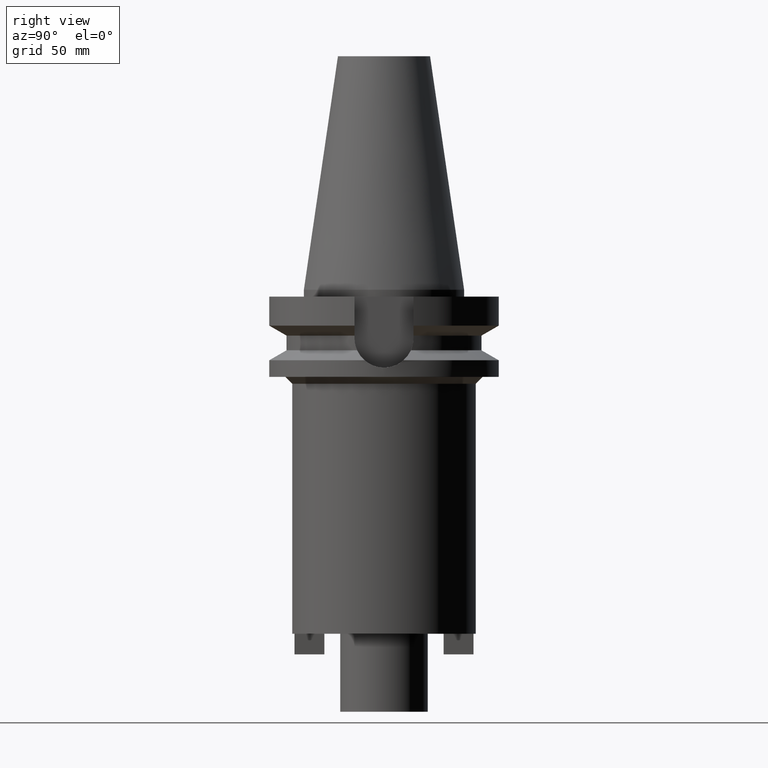
[diagram: clean part render]
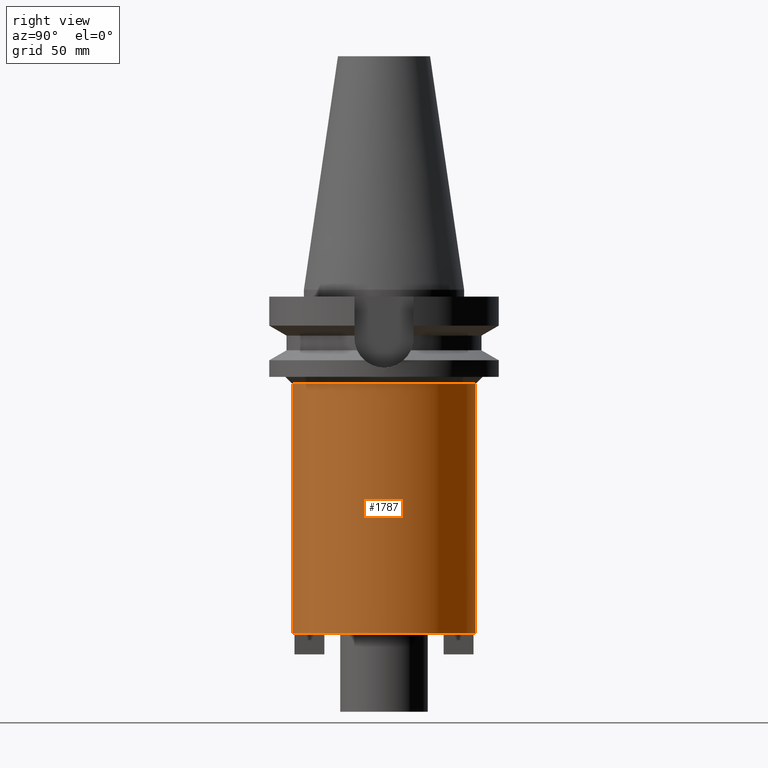
[diagram: same view with one face highlighted and labeled with its STEP entity id]
A machine part, right view. The second image highlights one B-rep face of the part: STEP entity #1787.
In plain terms, the highlighted cylindrical surface (partial cylindrical patch) has radius 40 mm, axis along (0, 0, -1).
Its self-contained STEP definition (entity closure, byte-faithful):
#540=CARTESIAN_POINT('',(0.E0,0.E0,-4.1E1));
#541=DIRECTION('',(0.E0,0.E0,-1.E0));
#542=DIRECTION('',(0.E0,1.E0,0.E0));
#543=AXIS2_PLACEMENT_3D('',#540,#541,#542);
#563=DIRECTION('',(0.E0,0.E0,-1.E0));
#564=VECTOR('',#563,1.09E2);
#565=CARTESIAN_POINT('',(0.E0,-4.E1,-4.1E1));
#566=LINE('',#565,#564);
#570=DIRECTION('',(0.E0,0.E0,-1.E0));
#571=VECTOR('',#570,1.09E2);
#572=CARTESIAN_POINT('',(0.E0,4.E1,-4.1E1));
#573=LINE('',#572,#571);
#585=CARTESIAN_POINT('',(0.E0,2.646339268278E-14,-1.5E2));
#586=DIRECTION('',(0.E0,0.E0,1.E0));
#587=DIRECTION('',(0.E0,-1.E0,0.E0));
#588=AXIS2_PLACEMENT_3D('',#585,#586,#587);
#1274=CARTESIAN_POINT('',(0.E0,4.E1,-4.1E1));
#1275=VERTEX_POINT('',#1274);
#1276=CARTESIAN_POINT('',(0.E0,-4.E1,-4.1E1));
#1277=VERTEX_POINT('',#1276);
#1278=CARTESIAN_POINT('',(0.E0,4.E1,-1.5E2));
#1279=VERTEX_POINT('',#1278);
#1280=CARTESIAN_POINT('',(0.E0,-4.E1,-1.5E2));
#1281=VERTEX_POINT('',#1280);
#1775=CARTESIAN_POINT('',(0.E0,2.646339268278E-14,1.1609E2));
#1776=DIRECTION('',(0.E0,0.E0,-1.E0));
#1777=DIRECTION('',(0.E0,-1.E0,0.E0));
#1778=AXIS2_PLACEMENT_3D('',#1775,#1776,#1777);
#1779=CYLINDRICAL_SURFACE('',#1778,4.E1);
#1780=ORIENTED_EDGE('',*,*,#1765,.T.);
#1782=ORIENTED_EDGE('',*,*,#1781,.F.);
#1783=ORIENTED_EDGE('',*,*,#1768,.F.);
#1784=ORIENTED_EDGE('',*,*,#1739,.F.);
#1785=EDGE_LOOP('',(#1780,#1782,#1783,#1784));
#1786=FACE_OUTER_BOUND('',#1785,.F.);
#544=CIRCLE('',#543,4.E1);
#589=CIRCLE('',#588,4.E1);
#1739=EDGE_CURVE('',#1275,#1277,#544,.T.);
#1765=EDGE_CURVE('',#1275,#1279,#573,.T.);
#1768=EDGE_CURVE('',#1277,#1281,#566,.T.);
#1781=EDGE_CURVE('',#1281,#1279,#589,.T.);
#1787=ADVANCED_FACE('',(#1786),#1779,.T.);